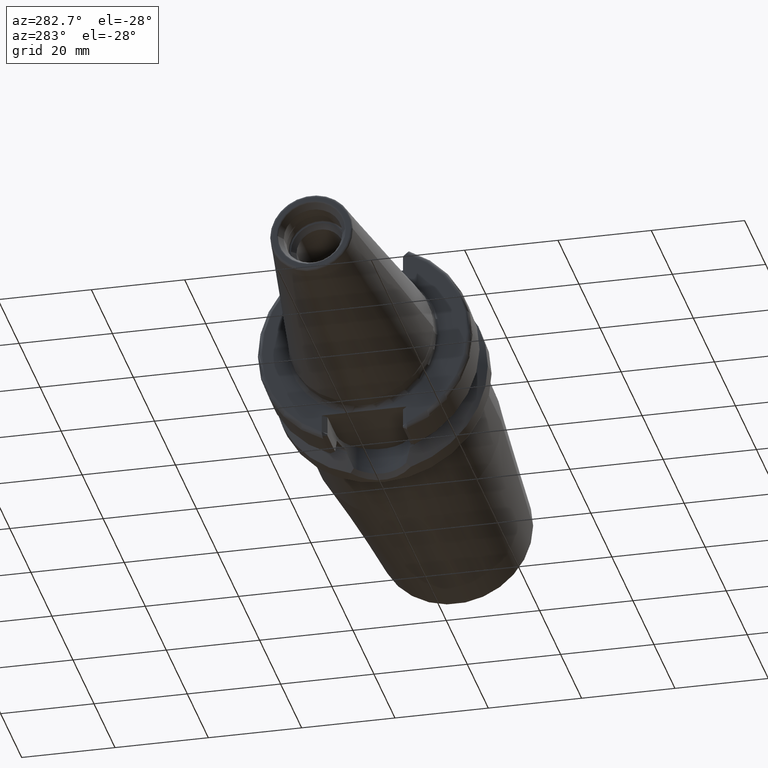
[diagram: clean part render]
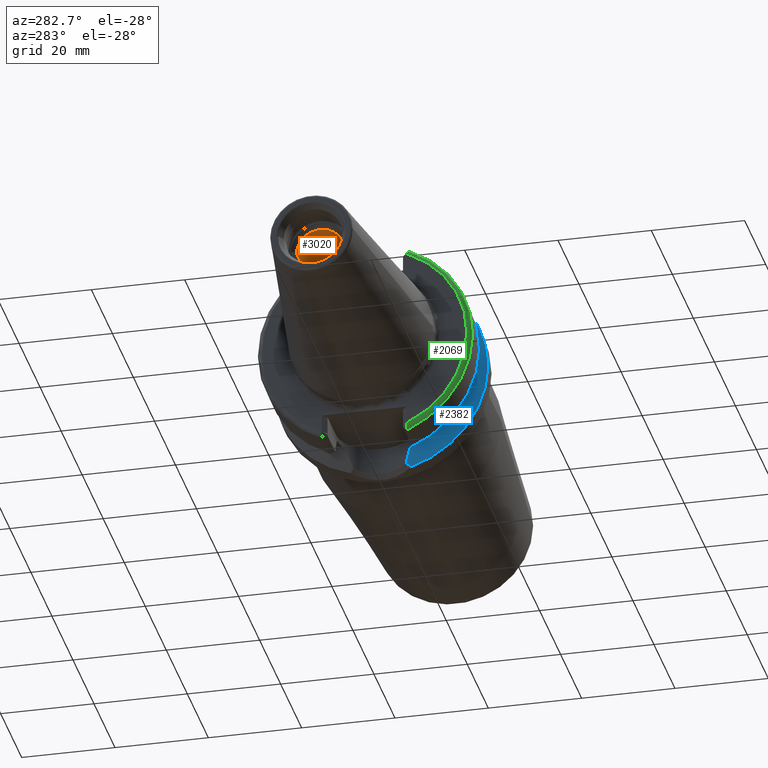
[diagram: same view with three faces highlighted in distinct colors, each labeled with its STEP entity id]
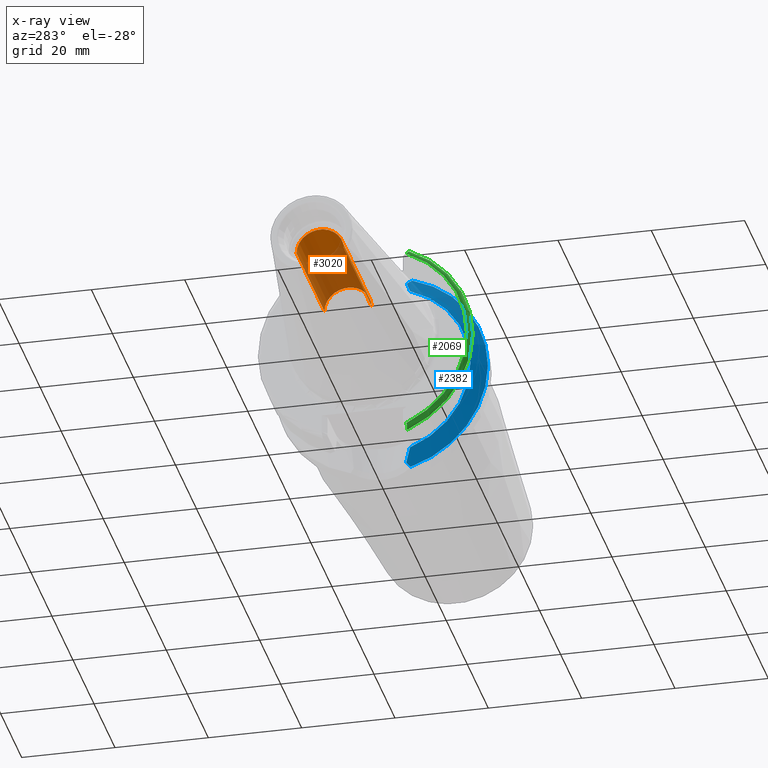
[diagram: x-ray of the same camera — body ghosted, the three highlighted faces saturated]
A machine part, auxiliary view with three faces highlighted in distinct colors.
The next image is the same camera in x-ray (body ghosted, the three faces saturated) — at least one of them is partly hidden behind the body in this view.
Their STEP definitions:

[orange] entity #3020 — the highlighted cylindrical surface (edge-blend (fillet) strip) has radius 5.055 mm, axis along (1, 0, 0).
#1112=CARTESIAN_POINT('',(-3.995E1,0.E0,0.E0));
#1113=DIRECTION('',(1.E0,0.E0,0.E0));
#1114=DIRECTION('',(0.E0,1.E0,0.E0));
#1115=AXIS2_PLACEMENT_3D('',#1112,#1113,#1114);
#1130=DIRECTION('',(-1.E0,0.E0,0.E0));
#1131=VECTOR('',#1130,2.655E1);
#1132=CARTESIAN_POINT('',(-1.34E1,5.055E0,0.E0));
#1133=LINE('',#1132,#1131);
#1139=DIRECTION('',(-1.E0,0.E0,0.E0));
#1140=VECTOR('',#1139,2.655E1);
#1141=CARTESIAN_POINT('',(-1.34E1,-5.055E0,0.E0));
#1142=LINE('',#1141,#1140);
#1143=CARTESIAN_POINT('',(-1.34E1,0.E0,0.E0));
#1144=DIRECTION('',(1.E0,0.E0,0.E0));
#1145=DIRECTION('',(0.E0,1.E0,0.E0));
#1146=AXIS2_PLACEMENT_3D('',#1143,#1144,#1145);
#1241=CARTESIAN_POINT('',(-1.34E1,5.055E0,0.E0));
#1243=VERTEX_POINT('',#1241);
#1244=CARTESIAN_POINT('',(-3.995E1,5.055E0,0.E0));
#1245=VERTEX_POINT('',#1244);
#1264=CARTESIAN_POINT('',(-1.34E1,-5.055E0,0.E0));
#1265=VERTEX_POINT('',#1264);
#1266=CARTESIAN_POINT('',(-3.995E1,-5.055E0,0.E0));
#1267=VERTEX_POINT('',#1266);
#3008=CARTESIAN_POINT('',(-5.030186752146E1,0.E0,0.E0));
#3009=DIRECTION('',(1.E0,0.E0,0.E0));
#3010=DIRECTION('',(0.E0,-1.E0,0.E0));
#3011=AXIS2_PLACEMENT_3D('',#3008,#3009,#3010);
#3012=CYLINDRICAL_SURFACE('',#3011,5.055E0);
#3013=ORIENTED_EDGE('',*,*,#2998,.T.);
#3014=ORIENTED_EDGE('',*,*,#2975,.T.);
#3015=ORIENTED_EDGE('',*,*,#3002,.F.);
#3017=ORIENTED_EDGE('',*,*,#3016,.F.);
#3018=EDGE_LOOP('',(#3013,#3014,#3015,#3017));
#3019=FACE_OUTER_BOUND('',#3018,.F.);
#3020=ADVANCED_FACE('',(#3019),#3012,.F.);
#1116=CIRCLE('',#1115,5.055E0);
#1147=CIRCLE('',#1146,5.055E0);
#2975=EDGE_CURVE('',#1245,#1267,#1116,.T.);
#2998=EDGE_CURVE('',#1243,#1245,#1133,.T.);
#3002=EDGE_CURVE('',#1265,#1267,#1142,.T.);
#3016=EDGE_CURVE('',#1243,#1265,#1147,.T.);

[blue] entity #2382 — the highlighted conical surface has half-angle 60 deg.
#226=CARTESIAN_POINT('',(1.754907584126E1,0.E0,0.E0));
#227=DIRECTION('',(1.E0,0.E0,0.E0));
#228=DIRECTION('',(0.E0,-1.E0,0.E0));
#229=AXIS2_PLACEMENT_3D('',#226,#227,#228);
#301=CARTESIAN_POINT('',(1.698654743284E1,-5.614452737227E0,-2.128773692951E1));
#302=CARTESIAN_POINT('',(1.685107103184E1,-5.755167619944E0,-2.100794867350E1));
#303=CARTESIAN_POINT('',(1.657018228212E1,-6.026536433094E0,-2.042717096589E1));
#304=CARTESIAN_POINT('',(1.612019321532E1,-6.402407747302E0,-1.949400229719E1));
#305=CARTESIAN_POINT('',(1.580140145437E1,-6.631645487516E0,-1.883051788112E1));
#306=CARTESIAN_POINT('',(1.56375E1,-6.740639342822E0,-1.848861619239E1));
#539=CARTESIAN_POINT('',(1.56375E1,-6.740639342822E0,1.848861619239E1));
#540=CARTESIAN_POINT('',(1.585767247034E1,-6.594225471952E0,1.894790033793E1));
#541=CARTESIAN_POINT('',(1.628171976104E1,-6.281140526994E0,1.982974129959E1));
#542=CARTESIAN_POINT('',(1.667161664884E1,-5.929979516978E0,2.063692715611E1));
#543=CARTESIAN_POINT('',(1.685763265114E1,-5.745346451357E0,2.102139504543E1));
#754=CARTESIAN_POINT('',(1.56375E1,0.E0,0.E0));
#755=DIRECTION('',(-1.E0,0.E0,0.E0));
#756=DIRECTION('',(0.E0,-3.425286351209E-1,-9.395073890727E-1));
#757=AXIS2_PLACEMENT_3D('',#754,#755,#756);
#759=CARTESIAN_POINT('',(1.754907584126E1,-6.443032679053E0,-2.206869796560E1));
#760=CARTESIAN_POINT('',(1.748456901312E1,-6.349229342496E0,-2.197969071488E1));
#761=CARTESIAN_POINT('',(1.735689008885E1,-6.162789812709E0,-2.180316770528E1));
#762=CARTESIAN_POINT('',(1.716937022838E1,-5.886595386436E0,-2.154283832910E1));
#763=CARTESIAN_POINT('',(1.704704179076E1,-5.704784930306E0,-2.137227484606E1));
#764=CARTESIAN_POINT('',(1.698654743284E1,-5.614452737227E0,-2.128773692951E1));
#783=CARTESIAN_POINT('',(1.754907584126E1,0.E0,0.E0));
#784=DIRECTION('',(1.E0,0.E0,0.E0));
#785=DIRECTION('',(0.E0,-2.941213407634E-1,9.557680874080E-1));
#786=AXIS2_PLACEMENT_3D('',#783,#784,#785);
#943=CARTESIAN_POINT('',(1.685763265114E1,-5.745346451357E0,2.102139504543E1));
#944=CARTESIAN_POINT('',(1.693144167990E1,-5.855715160872E0,2.112375997325E1));
#945=CARTESIAN_POINT('',(1.708107453051E1,-6.078150083564E0,2.133074220340E1));
#946=CARTESIAN_POINT('',(1.731157671337E1,-6.416980815637E0,2.164800022547E1));
#947=CARTESIAN_POINT('',(1.746924261241E1,-6.646311278969E0,2.186398885076E1));
#948=CARTESIAN_POINT('',(1.754907584126E1,-6.761849624151E0,2.197310832951E1));
#1200=CARTESIAN_POINT('',(1.56375E1,-6.740639342822E0,-1.848861619239E1));
#1201=CARTESIAN_POINT('',(1.56375E1,-6.740639342822E0,1.848861619239E1));
#1202=VERTEX_POINT('',#1200);
#1203=VERTEX_POINT('',#1201);
#1216=CARTESIAN_POINT('',(1.754907584126E1,-2.299E1,0.E0));
#1217=CARTESIAN_POINT('',(1.754907584126E1,-6.443032679053E0,
-2.206869796560E1));
#1218=VERTEX_POINT('',#1216);
#1219=VERTEX_POINT('',#1217);
#1224=CARTESIAN_POINT('',(1.754907584126E1,-6.761849624151E0,2.197310832951E1));
#1225=VERTEX_POINT('',#1224);
#1314=VERTEX_POINT('',#543);
#1320=VERTEX_POINT('',#301);
#2365=CARTESIAN_POINT('',(1.659328792063E1,0.E0,0.E0));
#2366=DIRECTION('',(1.E0,0.E0,0.E0));
#2367=DIRECTION('',(0.E0,-1.E0,0.E0));
#2368=AXIS2_PLACEMENT_3D('',#2365,#2366,#2367);
#2369=CONICAL_SURFACE('',#2368,2.133452676021E1,6.E1);
#2371=ORIENTED_EDGE('',*,*,#2370,.T.);
#2372=ORIENTED_EDGE('',*,*,#1710,.T.);
#2374=ORIENTED_EDGE('',*,*,#2373,.T.);
#2375=ORIENTED_EDGE('',*,*,#1764,.T.);
#2376=ORIENTED_EDGE('',*,*,#1821,.T.);
#2377=ORIENTED_EDGE('',*,*,#1962,.T.);
#2379=ORIENTED_EDGE('',*,*,#2378,.T.);
#2380=EDGE_LOOP('',(#2371,#2372,#2374,#2375,#2376,#2377,#2379));
#2381=FACE_OUTER_BOUND('',#2380,.F.);
#2382=ADVANCED_FACE('',(#2381),#2369,.T.);
#230=CIRCLE('',#229,2.299E1);
#307=B_SPLINE_CURVE_WITH_KNOTS('',3,(#301,#302,#303,#304,#305,#306),
.UNSPECIFIED.,.F.,.F.,(4,1,1,4),(0.E0,3.333333333333E-1,6.666666666667E-1,1.E0),
.UNSPECIFIED.);
#544=B_SPLINE_CURVE_WITH_KNOTS('',3,(#539,#540,#541,#542,#543),.UNSPECIFIED.,
.F.,.F.,(4,1,4),(0.E0,5.E-1,1.E0),.UNSPECIFIED.);
#758=CIRCLE('',#757,1.967905352042E1);
#765=B_SPLINE_CURVE_WITH_KNOTS('',3,(#759,#760,#761,#762,#763,#764),
.UNSPECIFIED.,.F.,.F.,(4,1,1,4),(0.E0,3.333333333333E-1,6.666666666667E-1,1.E0),
.UNSPECIFIED.);
#787=CIRCLE('',#786,2.299E1);
#949=B_SPLINE_CURVE_WITH_KNOTS('',3,(#943,#944,#945,#946,#947,#948),
.UNSPECIFIED.,.F.,.F.,(4,1,1,4),(0.E0,3.333333333333E-1,6.666666666667E-1,1.E0),
.UNSPECIFIED.);
#1710=EDGE_CURVE('',#1218,#1219,#230,.T.);
#1764=EDGE_CURVE('',#1320,#1202,#307,.T.);
#1821=EDGE_CURVE('',#1202,#1203,#758,.T.);
#1962=EDGE_CURVE('',#1203,#1314,#544,.T.);
#2370=EDGE_CURVE('',#1225,#1218,#787,.T.);
#2373=EDGE_CURVE('',#1219,#1320,#765,.T.);
#2378=EDGE_CURVE('',#1314,#1225,#949,.T.);

[green] entity #2069 — the highlighted toroidal blend (fillet) surface has major radius 21.99 mm and minor (blend) radius 1 mm.
#199=CARTESIAN_POINT('',(3.E0,0.E0,0.E0));
#200=DIRECTION('',(-1.E0,0.E0,0.E0));
#201=DIRECTION('',(0.E0,-3.921232146517E-1,-9.199127048428E-1));
#202=AXIS2_PLACEMENT_3D('',#199,#200,#201);
#603=CARTESIAN_POINT('',(1.999981632272E0,-9.094981630699E0,-2.002101423182E1));
#604=CARTESIAN_POINT('',(1.999981632272E0,-9.095135000913E0,-2.009973987001E1));
#605=CARTESIAN_POINT('',(2.015160945499E0,-9.092440013760E0,-2.026137427148E1));
#606=CARTESIAN_POINT('',(2.092087566475E0,-9.080100772535E0,-2.051147418013E1));
#607=CARTESIAN_POINT('',(2.221538303973E0,-9.062314818954E0,-2.073904340005E1));
#608=CARTESIAN_POINT('',(2.392094966935E0,-9.042998101945E0,-2.092484818033E1));
#609=CARTESIAN_POINT('',(2.588906338275E0,-9.027264868146E0,-2.105716666242E1));
#610=CARTESIAN_POINT('',(2.795803887151E0,-9.016909789050E0,-2.113328869981E1));
#611=CARTESIAN_POINT('',(2.933097251829E0,-9.014825251737E0,-2.114881813308E1));
#612=CARTESIAN_POINT('',(2.999999972701E0,-9.014923952472E0,-2.114877606078E1));
#614=CARTESIAN_POINT('',(2.E0,0.E0,0.E0));
#615=DIRECTION('',(-1.E0,0.E0,0.E0));
#616=DIRECTION('',(0.E0,-4.135972017393E-1,-9.104599687594E-1));
#617=AXIS2_PLACEMENT_3D('',#614,#615,#616);
#619=CARTESIAN_POINT('',(3.E0,-9.095023821283E0,2.002100501199E1));
#620=DIRECTION('',(0.E0,-9.104595276032E-1,-4.135981728642E-1));
#621=DIRECTION('',(0.E0,-4.135981728642E-1,9.104595276032E-1));
#622=AXIS2_PLACEMENT_3D('',#619,#620,#621);
#1334=CARTESIAN_POINT('',(1.999971790894E0,-9.094971783867E0,2.002102625535E1));
#1336=VERTEX_POINT('',#1334);
#1338=CARTESIAN_POINT('',(3.E0,-9.508621994147E0,2.093146453960E1));
#1339=VERTEX_POINT('',#1338);
#1359=VERTEX_POINT('',#603);
#1360=VERTEX_POINT('',#612);
#2057=CARTESIAN_POINT('',(3.E0,0.E0,0.E0));
#2058=DIRECTION('',(1.E0,0.E0,0.E0));
#2059=DIRECTION('',(0.E0,-1.E0,0.E0));
#2060=AXIS2_PLACEMENT_3D('',#2057,#2058,#2059);
#2061=TOROIDAL_SURFACE('',#2060,2.199E1,1.E0);
#2063=ORIENTED_EDGE('',*,*,#2062,.F.);
#2064=ORIENTED_EDGE('',*,*,#1589,.T.);
#2065=ORIENTED_EDGE('',*,*,#2035,.F.);
#2066=ORIENTED_EDGE('',*,*,#1683,.F.);
#2067=EDGE_LOOP('',(#2063,#2064,#2065,#2066));
#2068=FACE_OUTER_BOUND('',#2067,.F.);
#2069=ADVANCED_FACE('',(#2068),#2061,.T.);
#203=CIRCLE('',#202,2.299E1);
#613=B_SPLINE_CURVE_WITH_KNOTS('',3,(#603,#604,#605,#606,#607,#608,#609,#610,
#611,#612),.UNSPECIFIED.,.F.,.F.,(4,1,1,1,1,1,1,4),(0.E0,1.428571428571E-1,
2.857142857143E-1,4.285714285714E-1,5.714285714286E-1,7.142857142857E-1,
8.571428571429E-1,1.E0),.UNSPECIFIED.);
#618=CIRCLE('',#617,2.199E1);
#623=CIRCLE('',#622,1.E0);
#1589=EDGE_CURVE('',#1359,#1336,#618,.T.);
#1683=EDGE_CURVE('',#1360,#1339,#203,.T.);
#2035=EDGE_CURVE('',#1339,#1336,#623,.T.);
#2062=EDGE_CURVE('',#1359,#1360,#613,.T.);